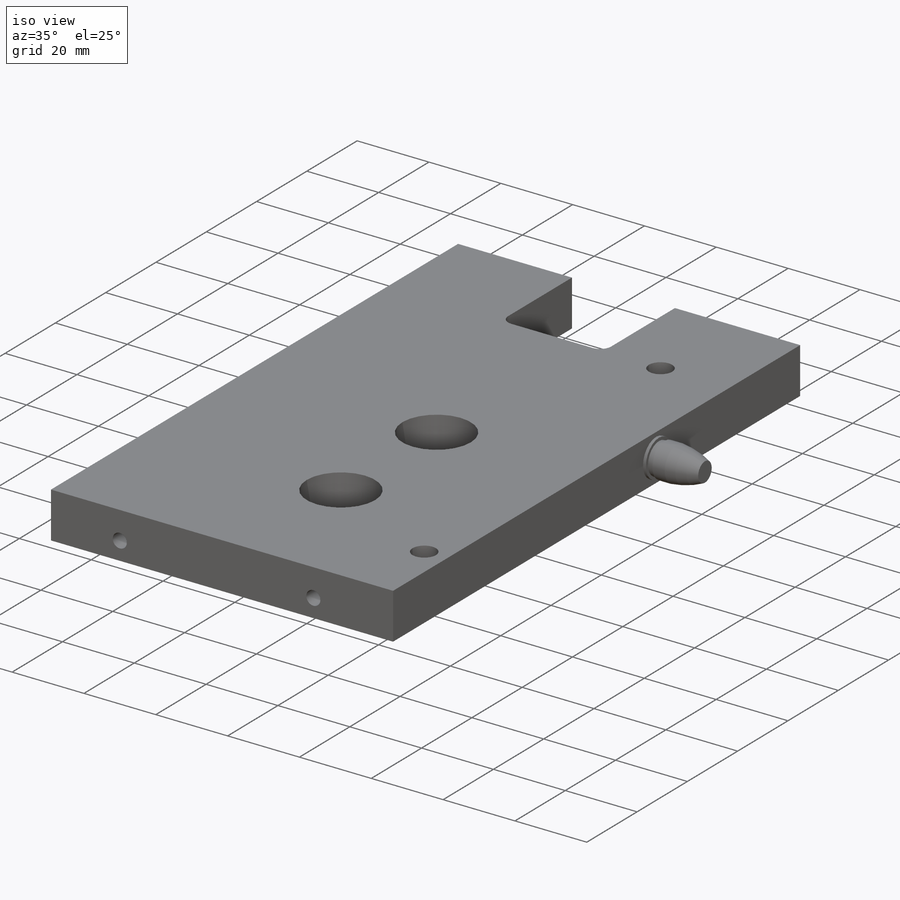
[diagram: iso view]
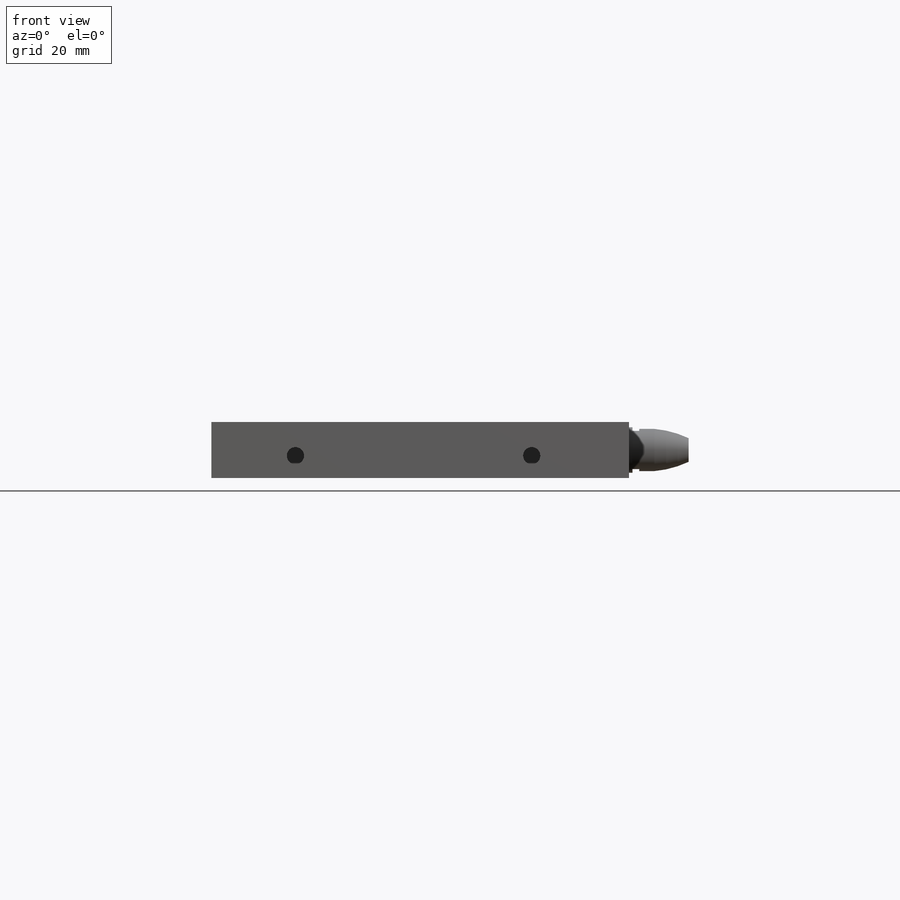
[diagram: front view]
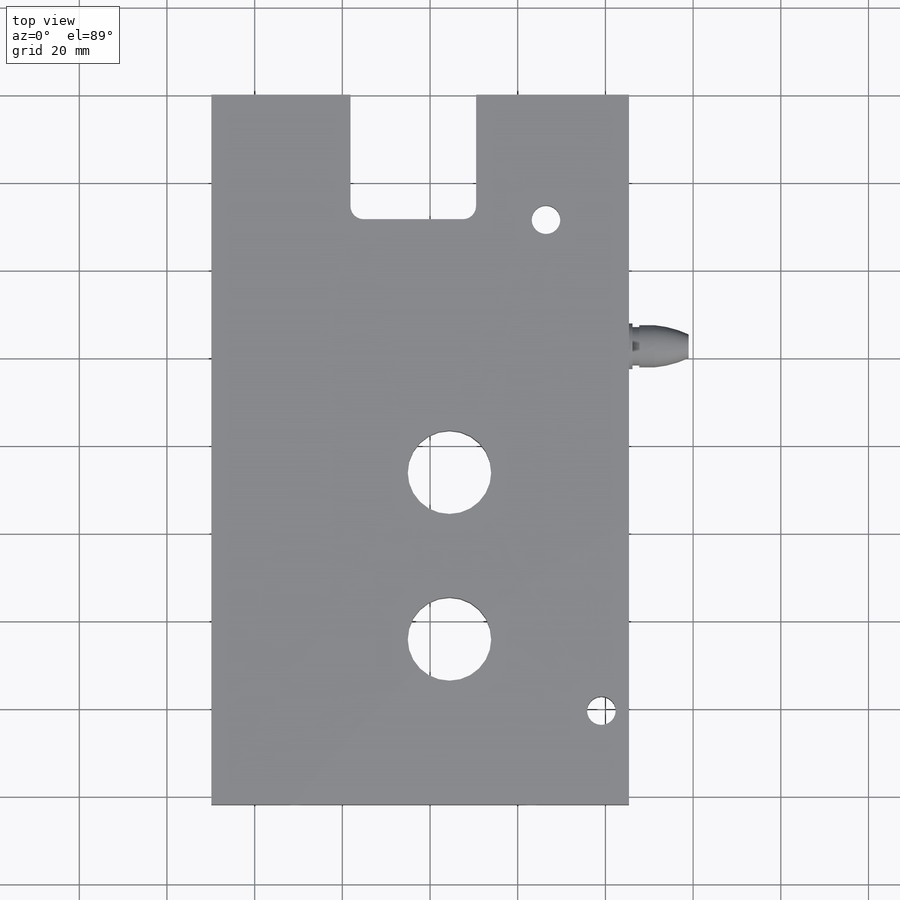
[diagram: top view]
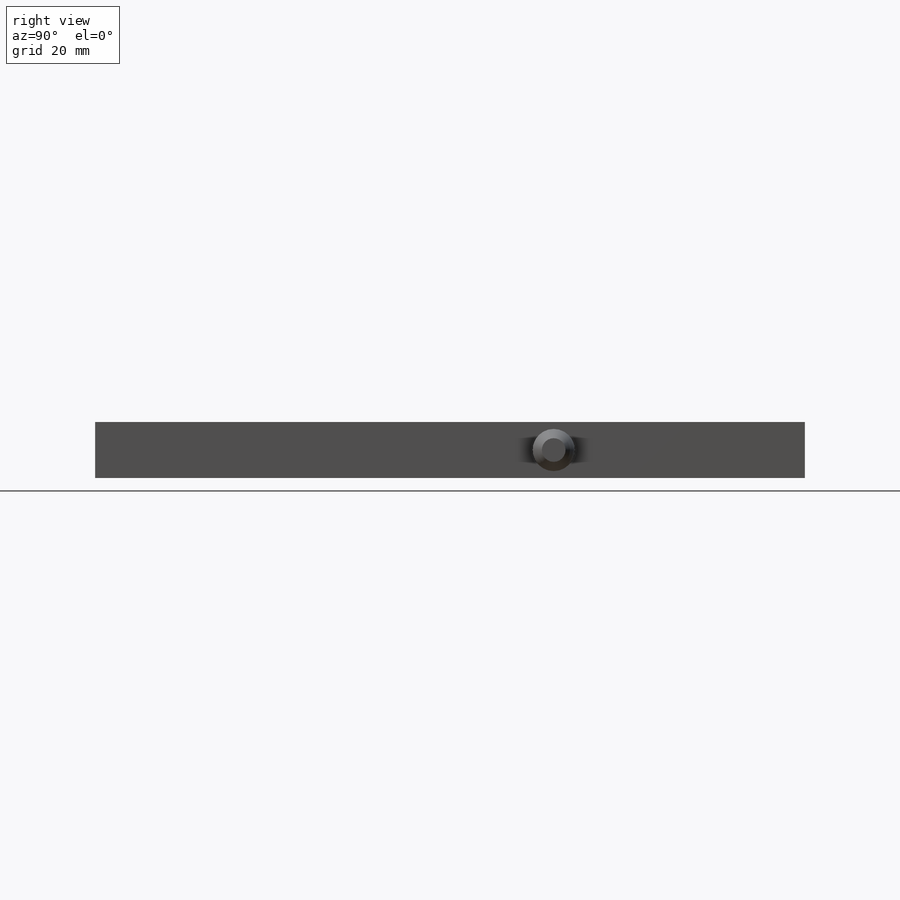
[diagram: right view]
SOLIDWORKS PART (.sldprt)
format: sldprt  version: not decoded by parser v0  size: 468,992 bytes
history: native  units: mm
features: sketch x8, cut_extrude x6, material x1, extrude x1, plane x1, revolve x1 (+16 scaffold rows collapsed)
feature tree (34):
  scaffold x16  (default folders/planes/origin — collapsed)
  material  "1060 Alloy"
  sketch  "Sketch1"
  extrude  "Boss-Extrude1"  [1 undecoded]
  cut_extrude  "Cut-Extrude1"  [1 undecoded]
  sketch  "Sketch1<3>"
  cut_extrude  "Cut-Extrude2"  [1 undecoded]
  sketch  "Sketch1<4>"
  sketch  "Sketch2"
  cut_extrude  "Cut-Extrude3"  [1 undecoded]
  sketch  "Sketch3"  dims[D1=19.05mm]
  cut_extrude  "Cut-Extrude4"  Depth=3.32mm
  sketch  "Sketch4"  dims[D1=3.93mm]
  cut_extrude  "Cut-Extrude5"  [1 undecoded]
  plane  "Plane1"
  sketch  "Sketch5"
  revolve  "Revolve1"  Angle=360deg
  sketch  "Sketch6"  dims[D1=19.0mm]
  cut_extrude  "Cut-Extrude6"  [1 undecoded]
decode coverage: 5 of 16 modeling features carry decoded parameters
note: 6 parameter values undecoded
summary: no parameter record found for 6 features
note: suppression state not decoded; provenance and decode notes live in map.json
